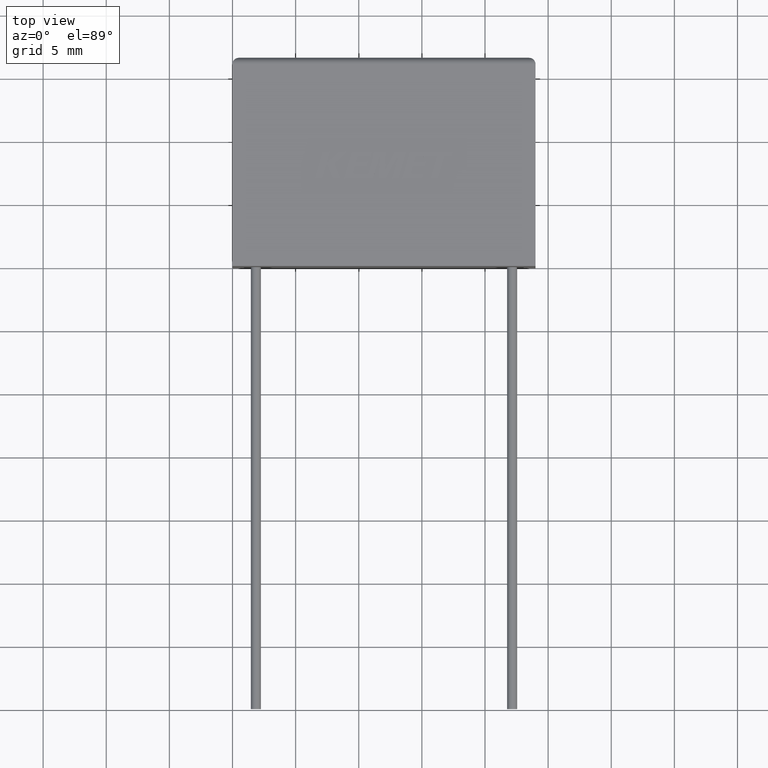
[diagram: clean part render]
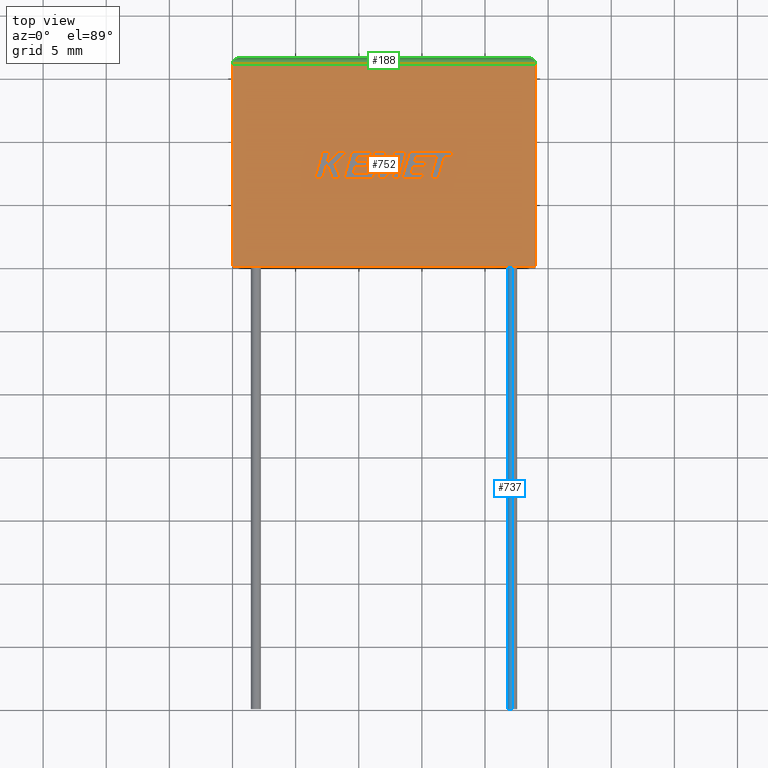
[diagram: same view with three faces highlighted in distinct colors, each labeled with its STEP entity id]
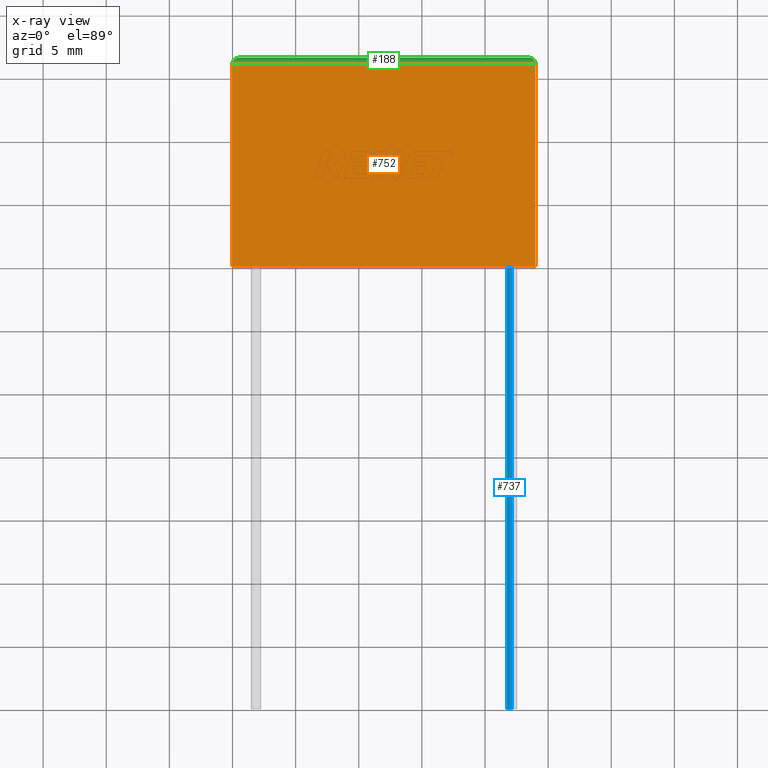
[diagram: x-ray of the same camera — body ghosted, the three highlighted faces saturated]
A machine part, top view with three faces highlighted in distinct colors.
The next image is the same camera in x-ray (body ghosted, the three faces saturated) — at least one of them is partly hidden behind the body in this view.
Their STEP definitions:

[orange] entity #752 — the highlighted planar face has unit normal (0, 0, -1).
#44 = VECTOR ( 'NONE', #1868, 1000.000000000000000 ) ;
#94 = LINE ( 'NONE', #618, #1244 ) ;
#156 = EDGE_CURVE ( 'NONE', #2086, #359, #2323, .T. ) ;
#256 = AXIS2_PLACEMENT_3D ( 'NONE', #1804, #2170, #1043 ) ;
#319 = EDGE_CURVE ( 'NONE', #1385, #2470, #441, .T. ) ;
#359 = VERTEX_POINT ( 'NONE', #2024 ) ;
#406 = CARTESIAN_POINT ( 'NONE',  ( 0.0000000000000000000, 0.0000000000000000000, 11.30000000000000100 ) ) ;
#441 = LINE ( 'NONE', #908, #44 ) ;
#525 = DIRECTION ( 'NONE',  ( -1.000000000000000000, 0.0000000000000000000, 0.0000000000000000000 ) ) ;
#618 = CARTESIAN_POINT ( 'NONE',  ( 0.0000000000000000000, 0.0000000000000000000, 11.30000000000000100 ) ) ;
#752 = ADVANCED_FACE ( 'NONE', ( #2250 ), #1600, .F. ) ;
#812 = DIRECTION ( 'NONE',  ( 1.000000000000000000, 0.0000000000000000000, 0.0000000000000000000 ) ) ;
#822 = EDGE_CURVE ( 'NONE', #359, #1385, #2315, .T. ) ;
#908 = CARTESIAN_POINT ( 'NONE',  ( 0.0000000000000000000, 0.0000000000000000000, 11.30000000000000100 ) ) ;
#999 = CARTESIAN_POINT ( 'NONE',  ( 0.0000000000000000000, 16.00000000000000000, 11.30000000000000100 ) ) ;
#1030 = ORIENTED_EDGE ( 'NONE', *, *, #2144, .T. ) ;
#1043 = DIRECTION ( 'NONE',  ( -1.000000000000000000, 0.0000000000000000000, -0.0000000000000000000 ) ) ;
#1072 = CARTESIAN_POINT ( 'NONE',  ( 24.00000000000000000, 0.0000000000000000000, 11.30000000000000100 ) ) ;
#1244 = VECTOR ( 'NONE', #812, 1000.000000000000000 ) ;
#1385 = VERTEX_POINT ( 'NONE', #999 ) ;
#1523 = EDGE_LOOP ( 'NONE', ( #1551, #2216, #1808, #1030 ) ) ;
#1551 = ORIENTED_EDGE ( 'NONE', *, *, #156, .T. ) ;
#1600 = PLANE ( 'NONE',  #256 ) ;
#1658 = CARTESIAN_POINT ( 'NONE',  ( 0.0000000000000000000, 16.00000000000000000, 11.30000000000000100 ) ) ;
#1804 = CARTESIAN_POINT ( 'NONE',  ( 0.0000000000000000000, 0.0000000000000000000, 11.30000000000000100 ) ) ;
#1808 = ORIENTED_EDGE ( 'NONE', *, *, #319, .T. ) ;
#1868 = DIRECTION ( 'NONE',  ( -0.0000000000000000000, -1.000000000000000000, -0.0000000000000000000 ) ) ;
#1921 = CARTESIAN_POINT ( 'NONE',  ( 24.00000000000000000, 0.0000000000000000000, 11.30000000000000100 ) ) ;
#2024 = CARTESIAN_POINT ( 'NONE',  ( 24.00000000000000000, 16.00000000000000000, 11.30000000000000100 ) ) ;
#2086 = VERTEX_POINT ( 'NONE', #1921 ) ;
#2144 = EDGE_CURVE ( 'NONE', #2470, #2086, #94, .T. ) ;
#2170 = DIRECTION ( 'NONE',  ( 0.0000000000000000000, 0.0000000000000000000, -1.000000000000000000 ) ) ;
#2171 = VECTOR ( 'NONE', #2377, 1000.000000000000000 ) ;
#2216 = ORIENTED_EDGE ( 'NONE', *, *, #822, .T. ) ;
#2250 = FACE_OUTER_BOUND ( 'NONE', #1523, .T. ) ;
#2315 = LINE ( 'NONE', #1658, #2430 ) ;
#2323 = LINE ( 'NONE', #1072, #2171 ) ;
#2377 = DIRECTION ( 'NONE',  ( 0.0000000000000000000, 1.000000000000000000, 0.0000000000000000000 ) ) ;
#2430 = VECTOR ( 'NONE', #525, 1000.000000000000000 ) ;
#2470 = VERTEX_POINT ( 'NONE', #406 ) ;

[blue] entity #737 — the highlighted cylindrical surface (edge-blend (fillet) strip) has radius 0.4 mm, axis along (-0, 1, -0).
#57 = DIRECTION ( 'NONE',  ( -0.0000000000000000000, 1.000000000000000000, -0.0000000000000000000 ) ) ;
#103 = EDGE_CURVE ( 'NONE', #1441, #1412, #1857, .T. ) ;
#130 = CARTESIAN_POINT ( 'NONE',  ( 22.15000000000000200, 0.0000000000000000000, 6.050000000000000700 ) ) ;
#173 = VERTEX_POINT ( 'NONE', #1619 ) ;
#183 = DIRECTION ( 'NONE',  ( -0.0000000000000000000, 1.000000000000000000, -0.0000000000000000000 ) ) ;
#187 = CARTESIAN_POINT ( 'NONE',  ( 22.15000000000000200, -35.00000000000000000, 6.050000000000000700 ) ) ;
#243 = DIRECTION ( 'NONE',  ( -0.0000000000000000000, 1.000000000000000000, -0.0000000000000000000 ) ) ;
#258 = CARTESIAN_POINT ( 'NONE',  ( 22.15000000000000200, -35.00000000000000000, 6.050000000000000700 ) ) ;
#331 = AXIS2_PLACEMENT_3D ( 'NONE', #1728, #243, #1583 ) ;
#438 = CIRCLE ( 'NONE', #331, 0.4000000000000001900 ) ;
#440 = DIRECTION ( 'NONE',  ( -0.0000000000000000000, 1.000000000000000000, -0.0000000000000000000 ) ) ;
#510 = ORIENTED_EDGE ( 'NONE', *, *, #611, .T. ) ;
#552 = CIRCLE ( 'NONE', #674, 0.4000000000000001900 ) ;
#611 = EDGE_CURVE ( 'NONE', #173, #1441, #552, .T. ) ;
#613 = CYLINDRICAL_SURFACE ( 'NONE', #2471, 0.4000000000000001900 ) ;
#628 = EDGE_LOOP ( 'NONE', ( #1984, #510, #2394, #2204 ) ) ;
#653 = DIRECTION ( 'NONE',  ( 0.0000000000000000000, 0.0000000000000000000, 1.000000000000000000 ) ) ;
#674 = AXIS2_PLACEMENT_3D ( 'NONE', #1174, #183, #1373 ) ;
#676 = EDGE_CURVE ( 'NONE', #2187, #1412, #438, .T. ) ;
#737 = ADVANCED_FACE ( 'NONE', ( #1254 ), #613, .T. ) ;
#824 = CARTESIAN_POINT ( 'NONE',  ( 22.15000000000000200, -35.00000000000000000, 5.250000000000000000 ) ) ;
#1003 = CARTESIAN_POINT ( 'NONE',  ( 22.15000000000000200, 0.0000000000000000000, 5.250000000000000000 ) ) ;
#1034 = VECTOR ( 'NONE', #440, 1000.000000000000000 ) ;
#1174 = CARTESIAN_POINT ( 'NONE',  ( 22.15000000000000200, -35.00000000000000000, 5.650000000000000400 ) ) ;
#1254 = FACE_OUTER_BOUND ( 'NONE', #628, .T. ) ;
#1373 = DIRECTION ( 'NONE',  ( 0.0000000000000000000, 0.0000000000000000000, -1.000000000000000000 ) ) ;
#1401 = CARTESIAN_POINT ( 'NONE',  ( 22.15000000000000200, -35.00000000000000000, 5.650000000000000400 ) ) ;
#1403 = DIRECTION ( 'NONE',  ( -0.0000000000000000000, 1.000000000000000000, -0.0000000000000000000 ) ) ;
#1412 = VERTEX_POINT ( 'NONE', #130 ) ;
#1441 = VERTEX_POINT ( 'NONE', #187 ) ;
#1583 = DIRECTION ( 'NONE',  ( 0.0000000000000000000, 0.0000000000000000000, -1.000000000000000000 ) ) ;
#1619 = CARTESIAN_POINT ( 'NONE',  ( 22.15000000000000200, -35.00000000000000000, 5.250000000000000000 ) ) ;
#1662 = LINE ( 'NONE', #824, #1034 ) ;
#1728 = CARTESIAN_POINT ( 'NONE',  ( 22.15000000000000200, 0.0000000000000000000, 5.650000000000000400 ) ) ;
#1796 = EDGE_CURVE ( 'NONE', #173, #2187, #1662, .T. ) ;
#1857 = LINE ( 'NONE', #258, #1974 ) ;
#1974 = VECTOR ( 'NONE', #1403, 1000.000000000000000 ) ;
#1984 = ORIENTED_EDGE ( 'NONE', *, *, #1796, .F. ) ;
#2187 = VERTEX_POINT ( 'NONE', #1003 ) ;
#2204 = ORIENTED_EDGE ( 'NONE', *, *, #676, .F. ) ;
#2394 = ORIENTED_EDGE ( 'NONE', *, *, #103, .T. ) ;
#2471 = AXIS2_PLACEMENT_3D ( 'NONE', #1401, #57, #653 ) ;

[green] entity #188 — the highlighted cylindrical surface (edge-blend (fillet) strip) has radius 0.5 mm, axis along (-1, 0, 0).
#76 =( BOUNDED_CURVE ( )  B_SPLINE_CURVE ( 3, ( #1299, #2428, #110, #1284 ),
 .UNSPECIFIED., .F., .F. ) 
 B_SPLINE_CURVE_WITH_KNOTS ( ( 4, 4 ),
 ( 1.570796326794896600, 3.141592653589793100 ),
 .UNSPECIFIED. ) 
 CURVE ( )  GEOMETRIC_REPRESENTATION_ITEM ( )  RATIONAL_B_SPLINE_CURVE ( ( 1.000000000000000000, 0.8047378541243649400, 0.8047378541243649400, 1.000000000000000000 ) ) 
 REPRESENTATION_ITEM ( '' )  );
#110 = CARTESIAN_POINT ( 'NONE',  ( 24.00000000000000000, 16.29289321881345400, 11.30000000000000100 ) ) ;
#188 = ADVANCED_FACE ( 'NONE', ( #1436 ), #1202, .T. ) ;
#276 = EDGE_CURVE ( 'NONE', #298, #359, #76, .T. ) ;
#295 = CARTESIAN_POINT ( 'NONE',  ( 0.5000000000000000000, 16.50000000000000000, 10.80000000000000100 ) ) ;
#298 = VERTEX_POINT ( 'NONE', #522 ) ;
#359 = VERTEX_POINT ( 'NONE', #2024 ) ;
#466 = DIRECTION ( 'NONE',  ( -1.000000000000000000, 0.0000000000000000000, 0.0000000000000000000 ) ) ;
#476 = ORIENTED_EDGE ( 'NONE', *, *, #1739, .T. ) ;
#522 = CARTESIAN_POINT ( 'NONE',  ( 23.50000000000000000, 16.50000000000000000, 10.80000000000000100 ) ) ;
#525 = DIRECTION ( 'NONE',  ( -1.000000000000000000, 0.0000000000000000000, 0.0000000000000000000 ) ) ;
#600 =( BOUNDED_CURVE ( )  B_SPLINE_CURVE ( 3, ( #295, #2047, #910, #1653 ),
 .UNSPECIFIED., .F., .T. ) 
 B_SPLINE_CURVE_WITH_KNOTS ( ( 4, 4 ),
 ( 1.570796326794896800, 3.141592653589793100 ),
 .UNSPECIFIED. ) 
 CURVE ( )  GEOMETRIC_REPRESENTATION_ITEM ( )  RATIONAL_B_SPLINE_CURVE ( ( 1.000000000000000000, 0.8047378541243650500, 0.8047378541243650500, 1.000000000000000000 ) ) 
 REPRESENTATION_ITEM ( '' )  );
#606 = VERTEX_POINT ( 'NONE', #2308 ) ;
#657 = CARTESIAN_POINT ( 'NONE',  ( 0.0000000000000000000, 16.00000000000000000, 10.80000000000000100 ) ) ;
#822 = EDGE_CURVE ( 'NONE', #359, #1385, #2315, .T. ) ;
#854 = CARTESIAN_POINT ( 'NONE',  ( 0.0000000000000000000, 16.50000000000000000, 10.80000000000000100 ) ) ;
#907 = EDGE_LOOP ( 'NONE', ( #476, #2410, #2335, #2150 ) ) ;
#910 = CARTESIAN_POINT ( 'NONE',  ( 1.442892915397364600E-016, 16.29289321881345400, 11.29999999999999700 ) ) ;
#999 = CARTESIAN_POINT ( 'NONE',  ( 0.0000000000000000000, 16.00000000000000000, 11.30000000000000100 ) ) ;
#1036 = LINE ( 'NONE', #854, #2070 ) ;
#1051 = DIRECTION ( 'NONE',  ( 1.000000000000000000, -0.0000000000000000000, -0.0000000000000000000 ) ) ;
#1128 = AXIS2_PLACEMENT_3D ( 'NONE', #657, #466, #1995 ) ;
#1202 = CYLINDRICAL_SURFACE ( 'NONE', #1128, 0.5000000000000004400 ) ;
#1284 = CARTESIAN_POINT ( 'NONE',  ( 24.00000000000000000, 16.00000000000000000, 11.30000000000000100 ) ) ;
#1299 = CARTESIAN_POINT ( 'NONE',  ( 23.50000000000000000, 16.50000000000000000, 10.80000000000000100 ) ) ;
#1385 = VERTEX_POINT ( 'NONE', #999 ) ;
#1436 = FACE_OUTER_BOUND ( 'NONE', #907, .T. ) ;
#1653 = CARTESIAN_POINT ( 'NONE',  ( 0.0000000000000000000, 16.00000000000000000, 11.30000000000000100 ) ) ;
#1658 = CARTESIAN_POINT ( 'NONE',  ( 0.0000000000000000000, 16.00000000000000000, 11.30000000000000100 ) ) ;
#1739 = EDGE_CURVE ( 'NONE', #606, #1385, #600, .T. ) ;
#1995 = DIRECTION ( 'NONE',  ( 0.0000000000000000000, 0.0000000000000000000, 1.000000000000000000 ) ) ;
#2024 = CARTESIAN_POINT ( 'NONE',  ( 24.00000000000000000, 16.00000000000000000, 11.30000000000000100 ) ) ;
#2047 = CARTESIAN_POINT ( 'NONE',  ( 0.2071067811865475200, 16.50000000000000000, 11.09289321881345100 ) ) ;
#2070 = VECTOR ( 'NONE', #1051, 1000.000000000000000 ) ;
#2150 = ORIENTED_EDGE ( 'NONE', *, *, #2281, .F. ) ;
#2281 = EDGE_CURVE ( 'NONE', #606, #298, #1036, .T. ) ;
#2308 = CARTESIAN_POINT ( 'NONE',  ( 0.5000000000000000000, 16.50000000000000000, 10.80000000000000100 ) ) ;
#2315 = LINE ( 'NONE', #1658, #2430 ) ;
#2335 = ORIENTED_EDGE ( 'NONE', *, *, #276, .F. ) ;
#2410 = ORIENTED_EDGE ( 'NONE', *, *, #822, .F. ) ;
#2428 = CARTESIAN_POINT ( 'NONE',  ( 23.79289321881345000, 16.50000000000000000, 11.09289321881345300 ) ) ;
#2430 = VECTOR ( 'NONE', #525, 1000.000000000000000 ) ;